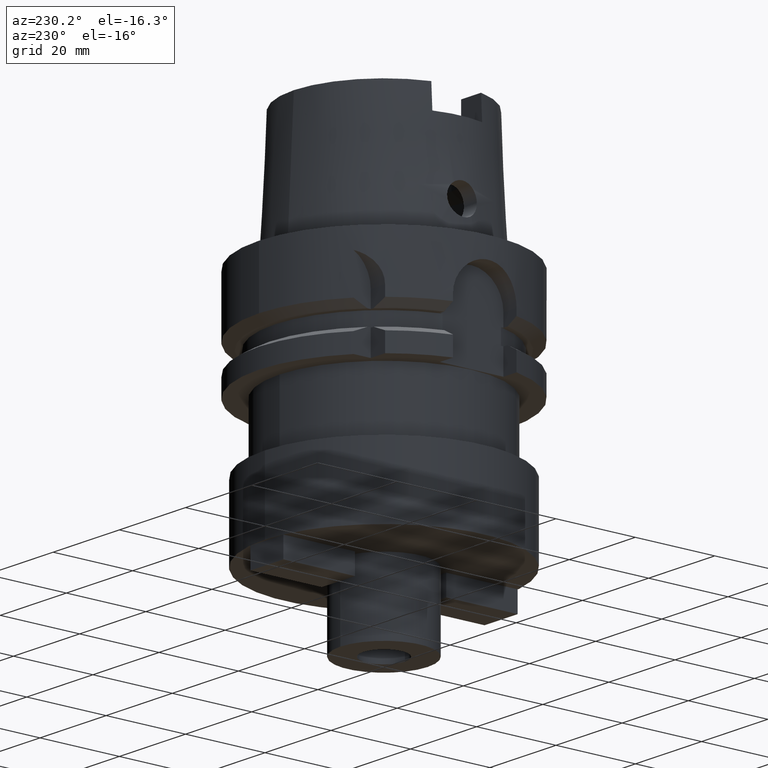
[diagram: clean part render]
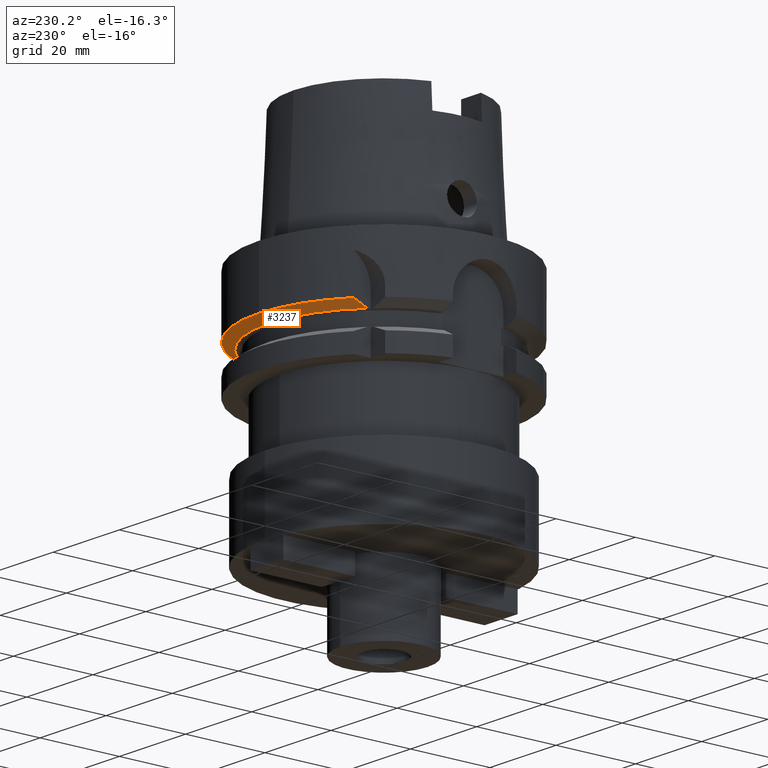
[diagram: same view with one face highlighted and labeled with its STEP entity id]
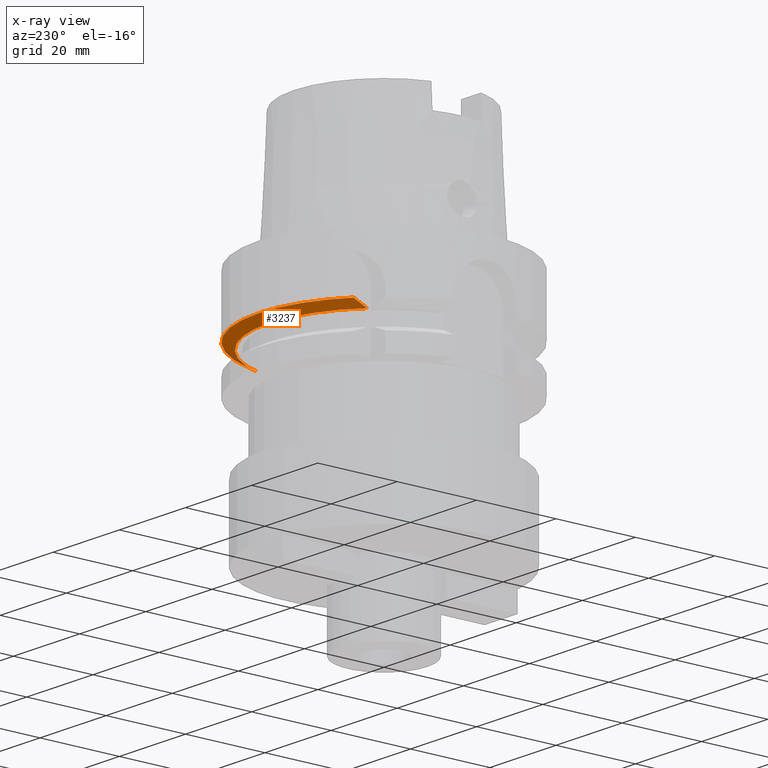
[diagram: x-ray of the same camera — body ghosted, the highlighted face saturated]
A machine part, auxiliary view. The second image highlights one B-rep face of the part: STEP entity #3237.
The next image is the same camera in x-ray: the body ghosted, the highlighted face saturated — about 2% of this face is hidden behind the body in this view.
In plain terms, the highlighted conical surface has half-angle 60 deg.
Its self-contained STEP definition (entity closure, byte-faithful):
#435=CARTESIAN_POINT('',(-2.000000400336E1,2.085831984813E1,-1.6125E1));
#436=CARTESIAN_POINT('',(-2.000000400336E1,2.124693612611E1,-1.596305091794E1));
#437=CARTESIAN_POINT('',(-1.999999996842E1,2.202241096369E1,-1.563531564574E1));
#438=CARTESIAN_POINT('',(-1.999999410548E1,2.318185418818E1,-1.513467824538E1));
#439=CARTESIAN_POINT('',(-2.000001377493E1,2.395169337056E1,-1.479394879248E1));
#440=CARTESIAN_POINT('',(-2.000001377493E1,2.433617572673E1,-1.462245154171E1));
#498=CARTESIAN_POINT('',(0.E0,0.E0,-1.6125E1));
#499=DIRECTION('',(0.E0,0.E0,1.E0));
#500=DIRECTION('',(9.502643111725E-1,3.114446000686E-1,0.E0));
#501=AXIS2_PLACEMENT_3D('',#498,#499,#500);
#506=CARTESIAN_POINT('',(0.E0,0.E0,-1.6125E1));
#507=DIRECTION('',(0.E0,0.E0,1.E0));
#508=DIRECTION('',(0.E0,1.E0,0.E0));
#509=AXIS2_PLACEMENT_3D('',#506,#507,#508);
#1108=CARTESIAN_POINT('',(2.746035052359E1,9.000000211771E0,-1.6125E1));
#1109=CARTESIAN_POINT('',(2.775557132685E1,9.000000211771E0,-1.596303143077E1));
#1110=CARTESIAN_POINT('',(2.835115414034E1,8.999999993747E0,-1.563576858072E1));
#1111=CARTESIAN_POINT('',(2.926000159170E1,8.999999704228E0,-1.513491827731E1));
#1112=CARTESIAN_POINT('',(2.987621794114E1,9.000000694304E0,-1.479440020412E1));
#1113=CARTESIAN_POINT('',(3.018691748925E1,9.000000694304E0,-1.462249532544E1));
#1118=CARTESIAN_POINT('',(0.E0,0.E0,-1.462250092524E1));
#1119=DIRECTION('',(0.E0,0.E0,1.E0));
#1120=DIRECTION('',(9.583148474999E-1,2.857142857143E-1,0.E0));
#1121=AXIS2_PLACEMENT_3D('',#1118,#1119,#1120);
#1126=CARTESIAN_POINT('',(0.E0,0.E0,-1.462250092524E1));
#1127=DIRECTION('',(0.E0,0.E0,1.E0));
#1128=DIRECTION('',(0.E0,1.E0,0.E0));
#1129=AXIS2_PLACEMENT_3D('',#1126,#1127,#1128);
#2351=CARTESIAN_POINT('',(-2.000000400336E1,2.085831984813E1,-1.6125E1));
#2353=VERTEX_POINT('',#2351);
#2354=VERTEX_POINT('',#440);
#2456=CARTESIAN_POINT('',(2.746035052359E1,9.000000211771E0,-1.6125E1));
#2457=VERTEX_POINT('',#2456);
#2458=CARTESIAN_POINT('',(2.644025879904E-14,2.889759526419E1,-1.6125E1));
#2459=VERTEX_POINT('',#2458);
#2462=VERTEX_POINT('',#1113);
#2463=CARTESIAN_POINT('',(0.E0,3.15E1,-1.462250092524E1));
#2464=VERTEX_POINT('',#2463);
#3224=CARTESIAN_POINT('',(0.E0,0.E0,-1.537375046262E1));
#3225=DIRECTION('',(0.E0,0.E0,1.E0));
#3226=DIRECTION('',(0.E0,1.E0,0.E0));
#3227=AXIS2_PLACEMENT_3D('',#3224,#3225,#3226);
#3228=CONICAL_SURFACE('',#3227,3.019879763210E1,6.E1);
#3229=ORIENTED_EDGE('',*,*,#2755,.F.);
#3230=ORIENTED_EDGE('',*,*,#2789,.F.);
#3231=ORIENTED_EDGE('',*,*,#2787,.F.);
#3232=ORIENTED_EDGE('',*,*,#3219,.T.);
#3233=ORIENTED_EDGE('',*,*,#3189,.T.);
#3234=ORIENTED_EDGE('',*,*,#2724,.T.);
#3235=EDGE_LOOP('',(#3229,#3230,#3231,#3232,#3233,#3234));
#3236=FACE_OUTER_BOUND('',#3235,.F.);
#441=B_SPLINE_CURVE_WITH_KNOTS('',3,(#435,#436,#437,#438,#439,#440),
.UNSPECIFIED.,.F.,.F.,(4,1,1,4),(0.E0,3.333333333333E-1,6.666666666667E-1,1.E0),
.UNSPECIFIED.);
#502=CIRCLE('',#501,2.889759526419E1);
#510=CIRCLE('',#509,2.889759526419E1);
#1114=B_SPLINE_CURVE_WITH_KNOTS('',3,(#1108,#1109,#1110,#1111,#1112,#1113),
.UNSPECIFIED.,.F.,.F.,(4,1,1,4),(0.E0,3.333333333333E-1,6.666666666667E-1,1.E0),
.UNSPECIFIED.);
#1122=CIRCLE('',#1121,3.15E1);
#1130=CIRCLE('',#1129,3.15E1);
#2724=EDGE_CURVE('',#2464,#2354,#1130,.T.);
#2755=EDGE_CURVE('',#2353,#2354,#441,.T.);
#2787=EDGE_CURVE('',#2457,#2459,#502,.T.);
#2789=EDGE_CURVE('',#2459,#2353,#510,.T.);
#3189=EDGE_CURVE('',#2462,#2464,#1122,.T.);
#3219=EDGE_CURVE('',#2457,#2462,#1114,.T.);
#3237=ADVANCED_FACE('',(#3236),#3228,.T.);